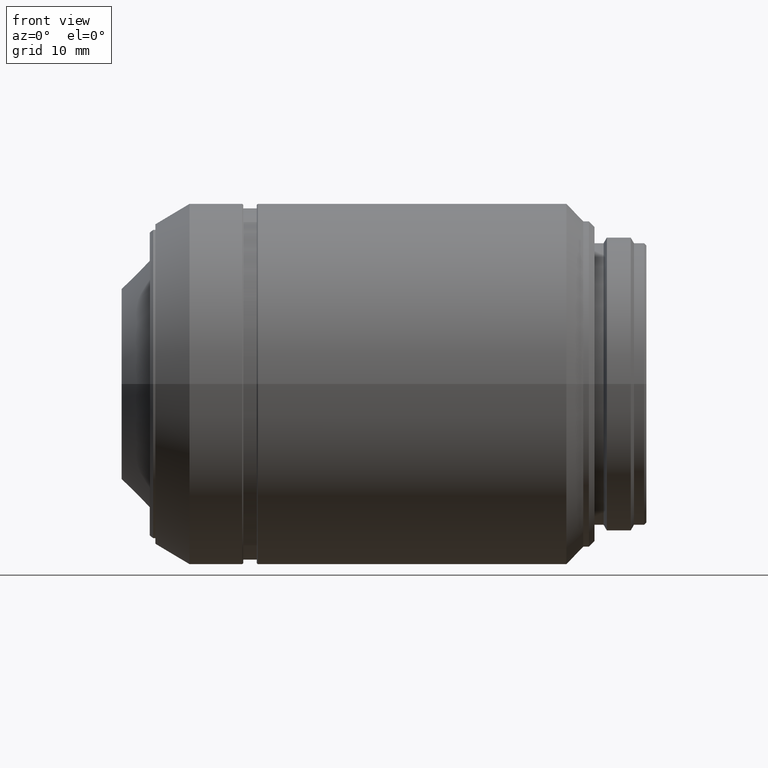
[diagram: clean part render]
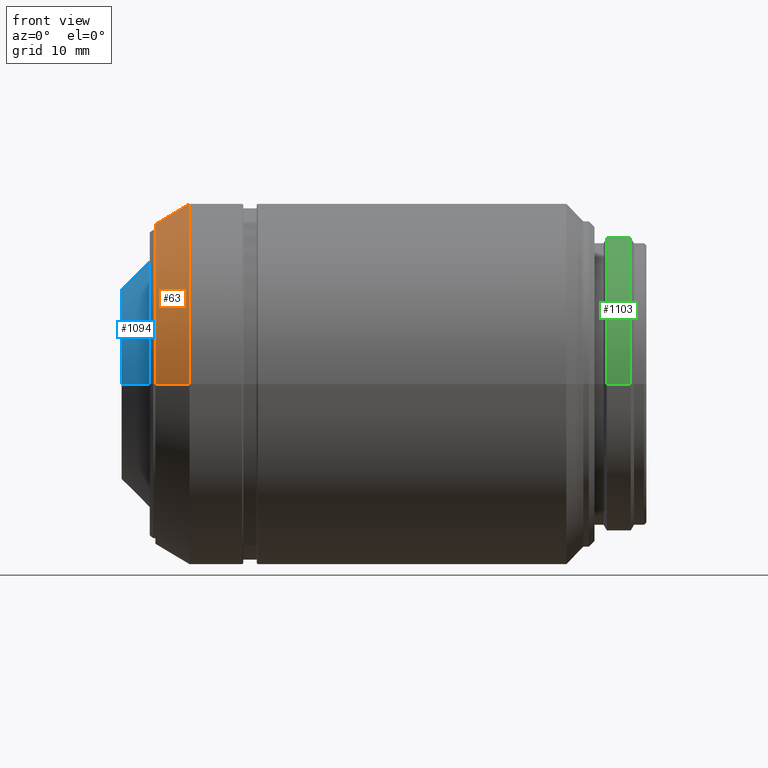
[diagram: same view with three faces highlighted in distinct colors, each labeled with its STEP entity id]
A machine part, front view with three faces highlighted in distinct colors.
Their STEP definitions:

[orange] entity #63 — the highlighted conical surface has half-angle 30 deg.
#39 = VERTEX_POINT ( 'NONE', #449 ) ;
#63 = ADVANCED_FACE ( 'NONE', ( #905 ), #1403, .T. ) ;
#96 = CARTESIAN_POINT ( 'NONE',  ( 2.031088913245540084, -16.00000000000000000, 0.000000000000000000 ) ) ;
#129 = EDGE_LOOP ( 'NONE', ( #458, #1128, #632, #1349 ) ) ;
#167 = CIRCLE ( 'NONE', #558, 16.00000000000000000 ) ;
#168 = LINE ( 'NONE', #500, #580 ) ;
#231 = AXIS2_PLACEMENT_3D ( 'NONE', #796, #587, #1028 ) ;
#266 = DIRECTION ( 'NONE',  ( 1.000000000000000000, 1.421085471520199908E-16, 0.000000000000000000 ) ) ;
#394 = CARTESIAN_POINT ( 'NONE',  ( 2.031088913245540084, 16.00000000000000000, -1.959434878635769865E-15 ) ) ;
#447 = CARTESIAN_POINT ( 'NONE',  ( -1.000000000000000000, -14.25000000000000000, 0.000000000000000000 ) ) ;
#449 = CARTESIAN_POINT ( 'NONE',  ( -1.000000000000000000, 14.25000000000000000, -1.745121688784980200E-15 ) ) ;
#458 = ORIENTED_EDGE ( 'NONE', *, *, #954, .T. ) ;
#465 = EDGE_CURVE ( 'NONE', #39, #523, #842, .T. ) ;
#500 = CARTESIAN_POINT ( 'NONE',  ( 2.031088913245540084, -16.00000000000000000, 0.000000000000000000 ) ) ;
#523 = VERTEX_POINT ( 'NONE', #394 ) ;
#541 = DIRECTION ( 'NONE',  ( 1.000000000000000000, 1.421085471520199908E-16, 0.000000000000000000 ) ) ;
#558 = AXIS2_PLACEMENT_3D ( 'NONE', #1036, #266, #1048 ) ;
#580 = VECTOR ( 'NONE', #734, 1000.000000000000000 ) ;
#587 = DIRECTION ( 'NONE',  ( 1.000000000000000000, 1.421085471520199908E-16, 0.000000000000000000 ) ) ;
#632 = ORIENTED_EDGE ( 'NONE', *, *, #465, .F. ) ;
#652 = CARTESIAN_POINT ( 'NONE',  ( -1.000000000000000000, -5.542233338928780061E-15, 0.000000000000000000 ) ) ;
#734 = DIRECTION ( 'NONE',  ( 0.8660254037844387076, -0.4999999999999998890, 0.000000000000000000 ) ) ;
#760 = VECTOR ( 'NONE', #1373, 1000.000000000000000 ) ;
#774 = EDGE_CURVE ( 'NONE', #39, #1386, #1181, .T. ) ;
#796 = CARTESIAN_POINT ( 'NONE',  ( 2.031088913245530314, -5.111489697178859668E-15, 0.000000000000000000 ) ) ;
#842 = LINE ( 'NONE', #1049, #760 ) ;
#905 = FACE_OUTER_BOUND ( 'NONE', #129, .T. ) ;
#954 = EDGE_CURVE ( 'NONE', #1386, #1294, #168, .T. ) ;
#972 = EDGE_CURVE ( 'NONE', #523, #1294, #167, .T. ) ;
#1028 = DIRECTION ( 'NONE',  ( 1.355252715606880543E-16, -1.000000000000000000, 0.000000000000000000 ) ) ;
#1036 = CARTESIAN_POINT ( 'NONE',  ( 2.031088913245530314, -5.111489697178859668E-15, 0.000000000000000000 ) ) ;
#1048 = DIRECTION ( 'NONE',  ( -1.355252715606880543E-16, 1.000000000000000000, 0.000000000000000000 ) ) ;
#1049 = CARTESIAN_POINT ( 'NONE',  ( 2.031088913245530314, 16.00000000000000000, -1.959434878635769865E-15 ) ) ;
#1128 = ORIENTED_EDGE ( 'NONE', *, *, #972, .F. ) ;
#1181 = CIRCLE ( 'NONE', #1207, 14.25000000000000000 ) ;
#1207 = AXIS2_PLACEMENT_3D ( 'NONE', #652, #541, #1313 ) ;
#1294 = VERTEX_POINT ( 'NONE', #96 ) ;
#1313 = DIRECTION ( 'NONE',  ( -1.369518533665900312E-16, 1.000000000000000000, 0.000000000000000000 ) ) ;
#1349 = ORIENTED_EDGE ( 'NONE', *, *, #774, .T. ) ;
#1373 = DIRECTION ( 'NONE',  ( 0.8660254037844387076, 0.4999999999999998890, -6.123233995736768501E-17 ) ) ;
#1386 = VERTEX_POINT ( 'NONE', #447 ) ;
#1403 = CONICAL_SURFACE ( 'NONE', #231, 16.00000000000000000, 0.5235987755982987046 ) ;

[blue] entity #1094 — the highlighted conical surface has half-angle 45 deg.
#23 = VERTEX_POINT ( 'NONE', #779 ) ;
#65 = DIRECTION ( 'NONE',  ( 1.000000000000000000, 1.421085471520199908E-16, 0.000000000000000000 ) ) ;
#128 = EDGE_CURVE ( 'NONE', #577, #23, #249, .T. ) ;
#160 = CIRCLE ( 'NONE', #827, 11.00000000000000000 ) ;
#201 = LINE ( 'NONE', #1396, #1088 ) ;
#215 = CONICAL_SURFACE ( 'NONE', #926, 11.00000000000000000, 0.7853981633974476129 ) ;
#221 = ORIENTED_EDGE ( 'NONE', *, *, #654, .T. ) ;
#246 = CARTESIAN_POINT ( 'NONE',  ( -4.000000000000000000, 8.500000000000000000, -1.040949779275249943E-15 ) ) ;
#249 = LINE ( 'NONE', #599, #665 ) ;
#291 = EDGE_CURVE ( 'NONE', #1393, #23, #160, .T. ) ;
#323 = DIRECTION ( 'NONE',  ( 0.7071067811865470176, 0.7071067811865480168, -8.659560562354929160E-17 ) ) ;
#409 = AXIS2_PLACEMENT_3D ( 'NONE', #412, #662, #644 ) ;
#412 = CARTESIAN_POINT ( 'NONE',  ( -4.000000000000000000, -5.968558980384839763E-15, 0.000000000000000000 ) ) ;
#511 = CARTESIAN_POINT ( 'NONE',  ( -4.000000000000000000, -8.500000000000000000, 0.000000000000000000 ) ) ;
#534 = CIRCLE ( 'NONE', #409, 8.500000000000000000 ) ;
#577 = VERTEX_POINT ( 'NONE', #511 ) ;
#599 = CARTESIAN_POINT ( 'NONE',  ( -1.500000000000000000, -11.00000000000000000, 0.000000000000000000 ) ) ;
#603 = DIRECTION ( 'NONE',  ( 1.379893674072460211E-16, -1.000000000000000000, 0.000000000000000000 ) ) ;
#612 = ORIENTED_EDGE ( 'NONE', *, *, #1149, .F. ) ;
#640 = ORIENTED_EDGE ( 'NONE', *, *, #128, .T. ) ;
#644 = DIRECTION ( 'NONE',  ( -1.020425574104004122E-16, 1.000000000000000000, 0.000000000000000000 ) ) ;
#654 = EDGE_CURVE ( 'NONE', #808, #577, #534, .T. ) ;
#662 = DIRECTION ( 'NONE',  ( 1.000000000000000000, 1.421085471520199908E-16, 0.000000000000000000 ) ) ;
#665 = VECTOR ( 'NONE', #1012, 1000.000000000000000 ) ;
#715 = DIRECTION ( 'NONE',  ( -1.379893674072460211E-16, 1.000000000000000000, 0.000000000000000000 ) ) ;
#779 = CARTESIAN_POINT ( 'NONE',  ( -1.500000000000000000, -11.00000000000000000, 0.000000000000000000 ) ) ;
#805 = CARTESIAN_POINT ( 'NONE',  ( -1.500000000000000000, 11.00000000000000000, -1.347111479062089982E-15 ) ) ;
#808 = VERTEX_POINT ( 'NONE', #246 ) ;
#827 = AXIS2_PLACEMENT_3D ( 'NONE', #1073, #1050, #715 ) ;
#840 = CARTESIAN_POINT ( 'NONE',  ( -1.500000000000000000, -5.613287612504789354E-15, 0.000000000000000000 ) ) ;
#926 = AXIS2_PLACEMENT_3D ( 'NONE', #840, #65, #603 ) ;
#964 = ORIENTED_EDGE ( 'NONE', *, *, #291, .F. ) ;
#1012 = DIRECTION ( 'NONE',  ( 0.7071067811865480168, -0.7071067811865470176, 0.000000000000000000 ) ) ;
#1050 = DIRECTION ( 'NONE',  ( 1.000000000000000000, 1.421085471520199908E-16, 0.000000000000000000 ) ) ;
#1073 = CARTESIAN_POINT ( 'NONE',  ( -1.500000000000000000, -5.613287612504789354E-15, 0.000000000000000000 ) ) ;
#1088 = VECTOR ( 'NONE', #323, 1000.000000000000000 ) ;
#1094 = ADVANCED_FACE ( 'NONE', ( #1156 ), #215, .T. ) ;
#1149 = EDGE_CURVE ( 'NONE', #808, #1393, #201, .T. ) ;
#1156 = FACE_OUTER_BOUND ( 'NONE', #1300, .T. ) ;
#1300 = EDGE_LOOP ( 'NONE', ( #640, #964, #612, #221 ) ) ;
#1393 = VERTEX_POINT ( 'NONE', #805 ) ;
#1396 = CARTESIAN_POINT ( 'NONE',  ( -1.500000000000000000, 11.00000000000000000, -1.347111479062089982E-15 ) ) ;

[green] entity #1103 — the highlighted cylindrical surface (partial cylindrical patch) has radius 13 mm, axis along (1, 0, 0).
#68 = VERTEX_POINT ( 'NONE', #927 ) ;
#85 = DIRECTION ( 'NONE',  ( 0.000000000000000000, 1.000000000000000000, 0.000000000000000000 ) ) ;
#106 = CARTESIAN_POINT ( 'NONE',  ( 41.21132486540520290, 4.563567110558879402E-16, 0.000000000000000000 ) ) ;
#107 = ORIENTED_EDGE ( 'NONE', *, *, #828, .F. ) ;
#113 = DIRECTION ( 'NONE',  ( 1.000000000000000000, 1.421085471520199908E-16, 0.000000000000000000 ) ) ;
#151 = CARTESIAN_POINT ( 'NONE',  ( 40.14999999999999858, 13.00000000000000000, -1.592040838891559884E-15 ) ) ;
#174 = LINE ( 'NONE', #492, #922 ) ;
#183 = VERTEX_POINT ( 'NONE', #800 ) ;
#199 = ORIENTED_EDGE ( 'NONE', *, *, #546, .T. ) ;
#282 = DIRECTION ( 'NONE',  ( 1.000000000000000000, 1.421085471520199908E-16, 0.000000000000000000 ) ) ;
#325 = VECTOR ( 'NONE', #1223, 1000.000000000000000 ) ;
#340 = VERTEX_POINT ( 'NONE', #390 ) ;
#377 = DIRECTION ( 'NONE',  ( 1.000000000000000000, 1.421085471520199908E-16, 0.000000000000000000 ) ) ;
#390 = CARTESIAN_POINT ( 'NONE',  ( 39.08867513459479426, 13.00000000000000000, -1.592040838891559884E-15 ) ) ;
#393 = CARTESIAN_POINT ( 'NONE',  ( 40.14999999999999858, 3.055333763768430062E-16, 0.000000000000000000 ) ) ;
#491 = FACE_OUTER_BOUND ( 'NONE', #849, .T. ) ;
#492 = CARTESIAN_POINT ( 'NONE',  ( 40.14999999999999858, -13.00000000000000000, 0.000000000000000000 ) ) ;
#546 = EDGE_CURVE ( 'NONE', #340, #68, #1013, .T. ) ;
#547 = DIRECTION ( 'NONE',  ( 0.000000000000000000, 1.000000000000000000, 0.000000000000000000 ) ) ;
#553 = AXIS2_PLACEMENT_3D ( 'NONE', #1269, #282, #85 ) ;
#564 = EDGE_CURVE ( 'NONE', #68, #1282, #174, .T. ) ;
#732 = ORIENTED_EDGE ( 'NONE', *, *, #564, .T. ) ;
#756 = EDGE_CURVE ( 'NONE', #183, #1282, #996, .T. ) ;
#764 = AXIS2_PLACEMENT_3D ( 'NONE', #393, #377, #846 ) ;
#800 = CARTESIAN_POINT ( 'NONE',  ( 41.21132486540520290, 13.00000000000000000, 0.000000000000000000 ) ) ;
#828 = EDGE_CURVE ( 'NONE', #340, #183, #1232, .T. ) ;
#846 = DIRECTION ( 'NONE',  ( 0.000000000000000000, -1.000000000000000000, 0.000000000000000000 ) ) ;
#849 = EDGE_LOOP ( 'NONE', ( #732, #879, #107, #199 ) ) ;
#879 = ORIENTED_EDGE ( 'NONE', *, *, #756, .F. ) ;
#922 = VECTOR ( 'NONE', #1157, 1000.000000000000000 ) ;
#927 = CARTESIAN_POINT ( 'NONE',  ( 39.08867513459479426, -13.00000000000000000, 0.000000000000000000 ) ) ;
#935 = CYLINDRICAL_SURFACE ( 'NONE', #764, 13.00000000000000000 ) ;
#996 = CIRCLE ( 'NONE', #1018, 13.00000000000000000 ) ;
#1013 = CIRCLE ( 'NONE', #553, 13.00000000000000000 ) ;
#1018 = AXIS2_PLACEMENT_3D ( 'NONE', #106, #113, #547 ) ;
#1103 = ADVANCED_FACE ( 'NONE', ( #491 ), #935, .T. ) ;
#1157 = DIRECTION ( 'NONE',  ( 1.000000000000000000, 1.421085471520199908E-16, 0.000000000000000000 ) ) ;
#1223 = DIRECTION ( 'NONE',  ( 1.000000000000000000, 1.421085471520199908E-16, 0.000000000000000000 ) ) ;
#1232 = LINE ( 'NONE', #151, #325 ) ;
#1269 = CARTESIAN_POINT ( 'NONE',  ( 39.08867513459479426, 1.547100416977990089E-16, 0.000000000000000000 ) ) ;
#1282 = VERTEX_POINT ( 'NONE', #1298 ) ;
#1298 = CARTESIAN_POINT ( 'NONE',  ( 41.21132486540520290, -13.00000000000000000, -1.592040838891559884E-15 ) ) ;